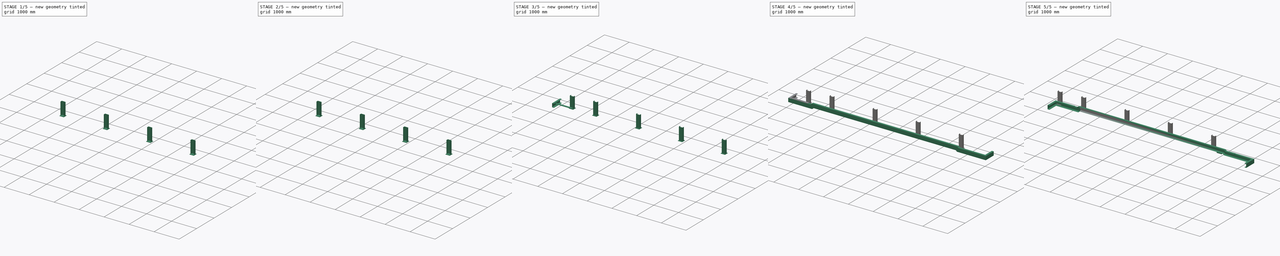
[diagram: build sequence overview — one tinted view per stage of 5, left to right]
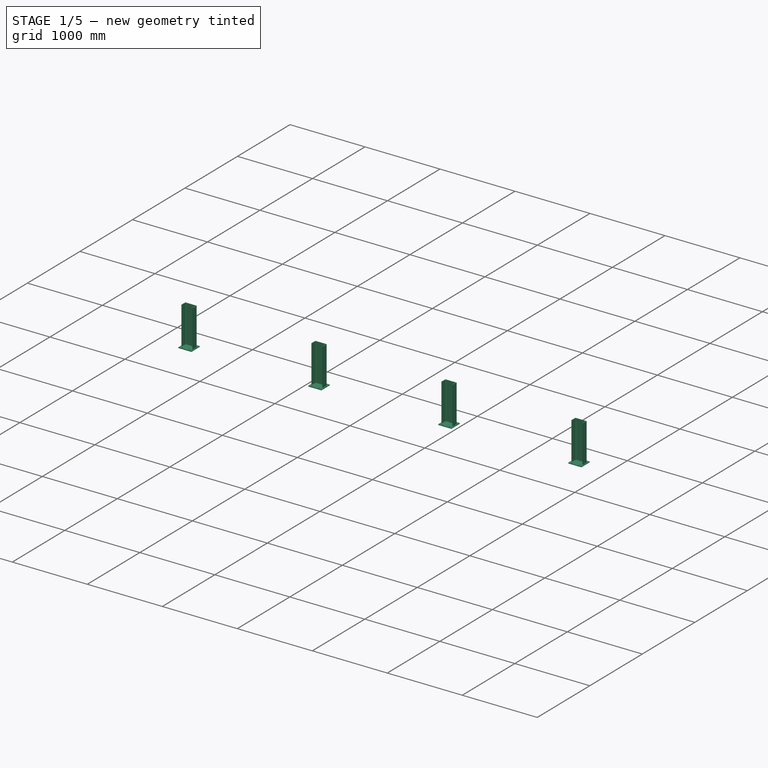
[diagram: stage 1 of 5 — iso view after this stage's code; geometry added in this stage tinted green]
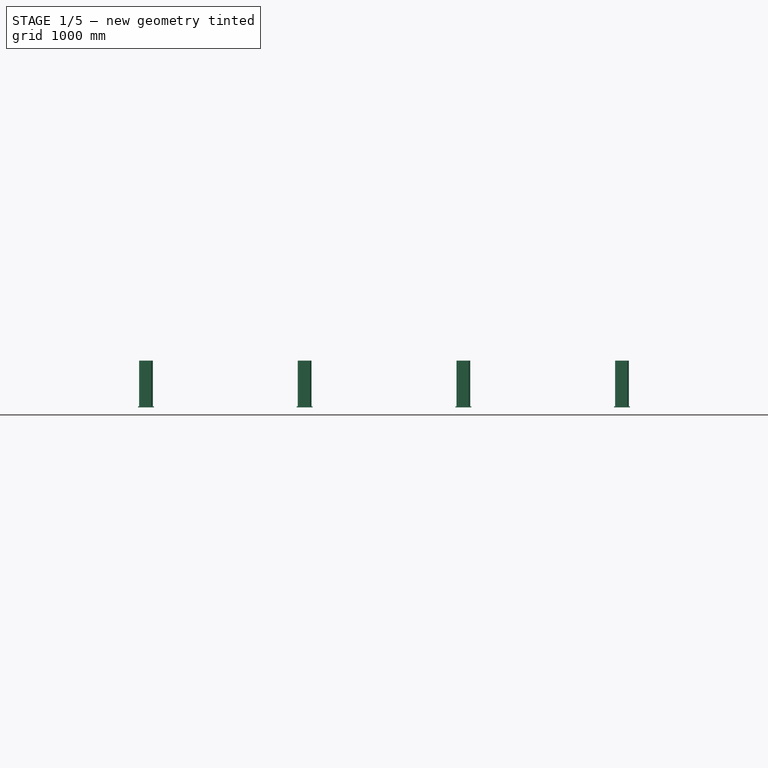
[diagram: stage 1 of 5 — front view after this stage's code; geometry added in this stage tinted green]
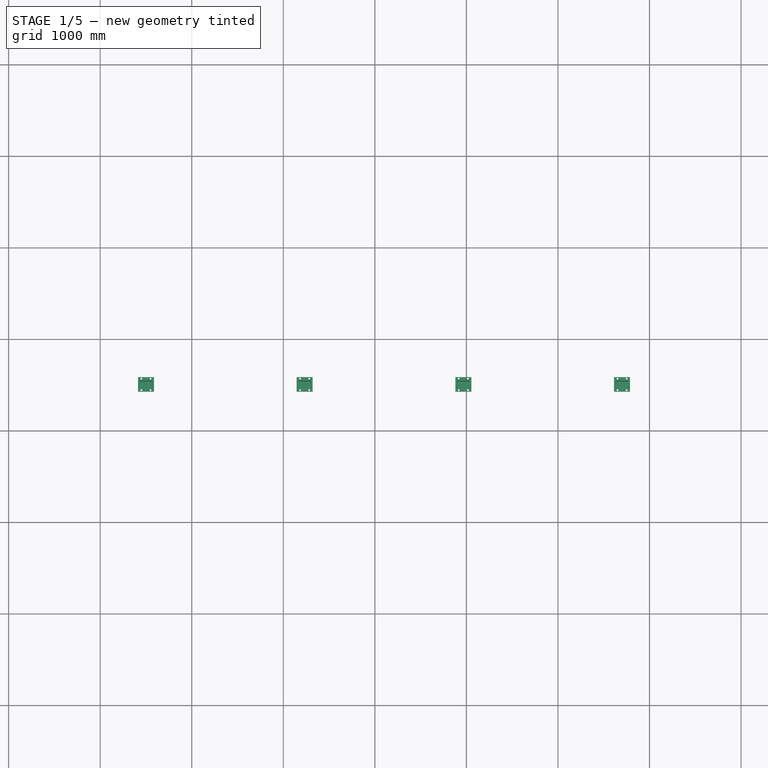
[diagram: stage 1 of 5 — top view after this stage's code; geometry added in this stage tinted green]
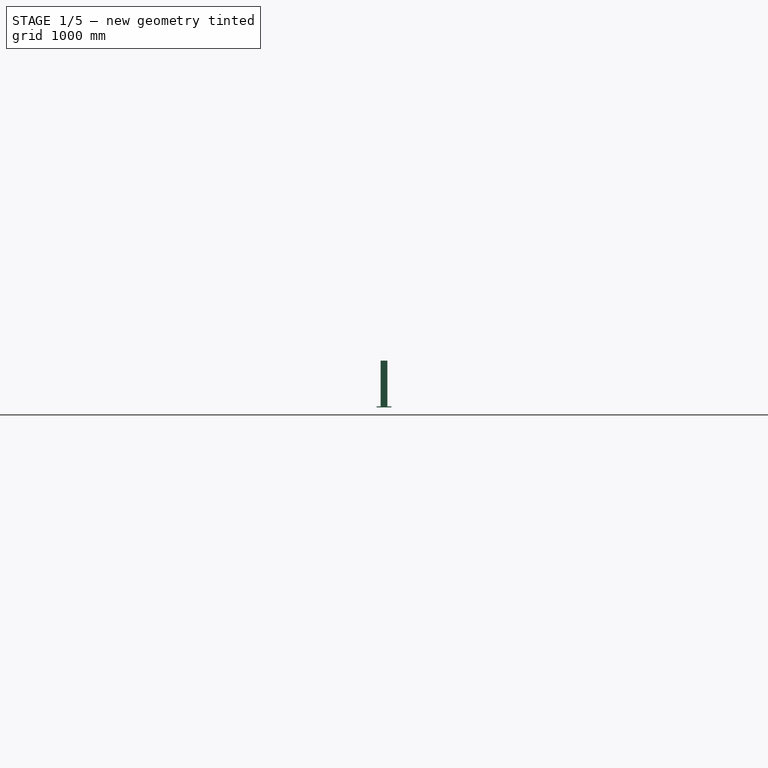
[diagram: stage 1 of 5 — right view after this stage's code; geometry added in this stage tinted green]
FCSTD DOCUMENT  (FreeCAD 1.0R39319 (Git))
Label: Frame
License: All rights reserved
LicenseURL: https://en.wikipedia.org/wiki/All_rights_reserved
objects: Part::Extrusion×9, Part::FeaturePython×9, Part::MultiFuse×9, Sketcher::SketchObject×6, App::Part×5, Part::Mirroring×2, Spreadsheet::Sheet×1, Part::Feature×1, Part::Sweep×1, Part::Cut×1
note: 44 computed .brp shape members not serialized (recipe doc carries the construction recipe); baked Part::Feature solids carry a one-line shape summary decoded from their .brp

FEATURE [Part::FeaturePython] BasePlate001  # WARN: FeaturePython — macro-defined, semantics opaque (R4)
  B = 175
  D = 19
  H = 160
  b1 = 25
  h1 = 30
  sface = 0
FEATURE [Part::FeaturePython] Channel001  # WARN: FeaturePython — macro-defined, semantics opaque (R4)
  B = 75
  H = 150
  L = 510
  Placement = pos=(0,0,0) rot=(1,0,0;1.5708rad)
  Solid = true
  g0 = 7.85
  mass = 12.0025
  size = 3
  standard = SS
  expr: L = str(Spreadsheet.Ht - 90 + (Spreadsheet.C0 - 1300 + 500) * tan(Spreadsheet.k))
FEATURE [Part::Extrusion] Extrude021
  Base = -> BasePlate001
  Dir = (0,0,1)
  DirMode = 2
  FaceMakerClass = Part::FaceMakerBullseye
  FaceMakerMode = 3
  LengthFwd = 10
  LengthRev = 0
  Solid = true
  Symmetric = false
FEATURE [Part::MultiFuse] Fusion011  label="PostC001"
  Placement = pos=(500,-492.5,-600) rot=(0,0,-1;1.5708rad)
  Shapes = -> [Extrude021,Channel001]
  expr: .Placement.Base.z = -Spreadsheet.Ht
FEATURE [Part::FeaturePython] Array  # Draft array (typed FeaturePython)
  Angle = 360
  ArrayType = 0
  Axis = (0,0,1)
  Base = -> Fusion011
  Center = (0,0,0)
  Count = 3
  Fuse = true
  IntervalAxis = (0,0,0)
  IntervalX = (1733.33,0,0)
  IntervalY = (0,100,0)
  IntervalZ = (0,0,100)
  NumberCircles = 3
  NumberPolar = 5
  NumberX = 3
  NumberY = 1
  NumberZ = 1
  Placement = pos=(1733.33,0,0) rot=(0,0,1;0rad)
  RadialDistance = 50
  Symmetry = 1
  TangentialDistance = 25
  expr: .IntervalX.x = Spreadsheet.post_x
  expr: .Placement.Base.x = Spreadsheet.post_x
  expr: NumberX = Spreadsheet.post_c + 1
FEATURE [Part::MultiFuse] Fusion013
  Refine = true
  Shapes = -> [Array,Fusion011]
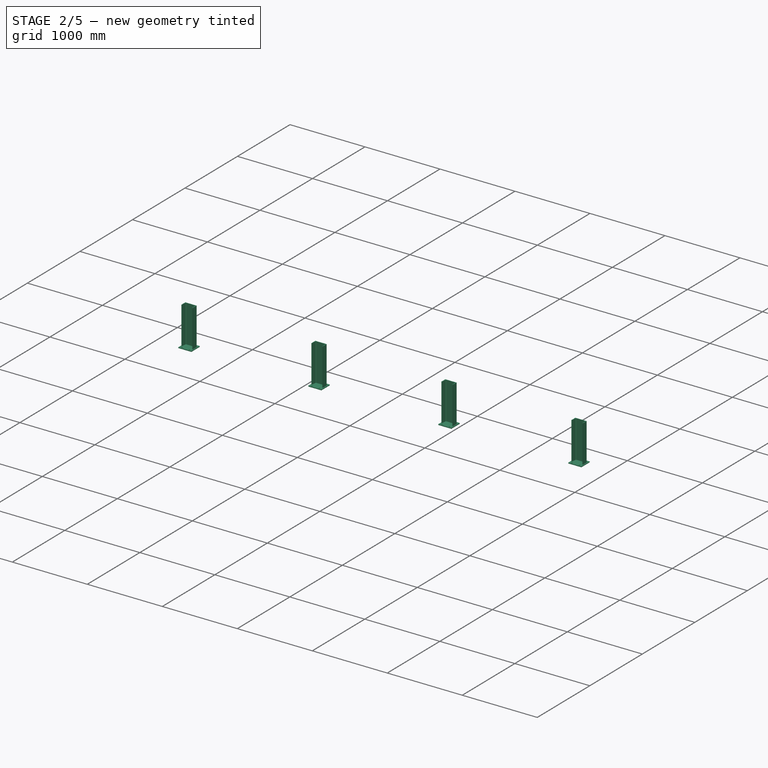
[diagram: stage 2 of 5 — iso view after this stage's code; geometry added in this stage tinted green]
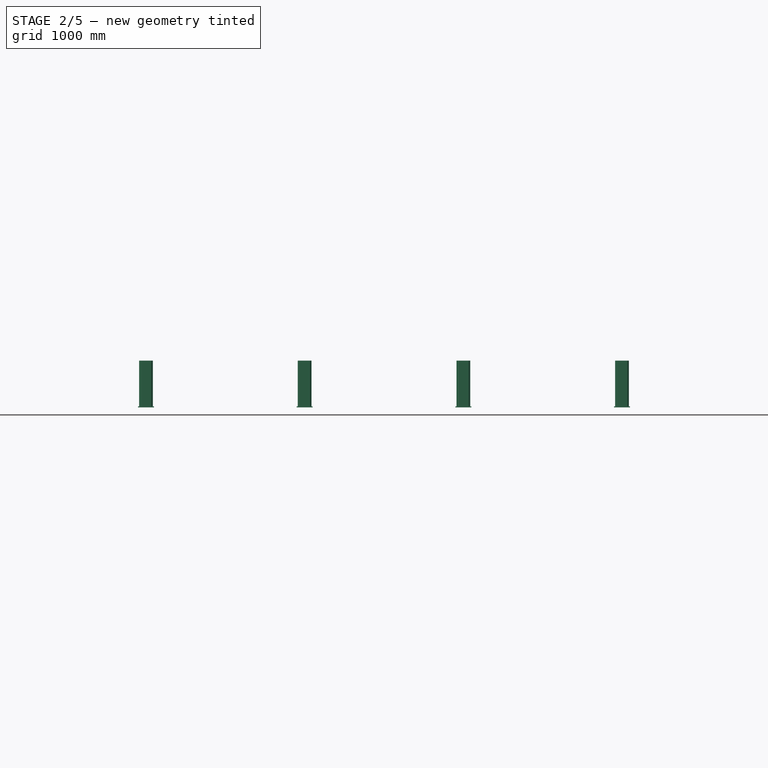
[diagram: stage 2 of 5 — front view after this stage's code; geometry added in this stage tinted green]
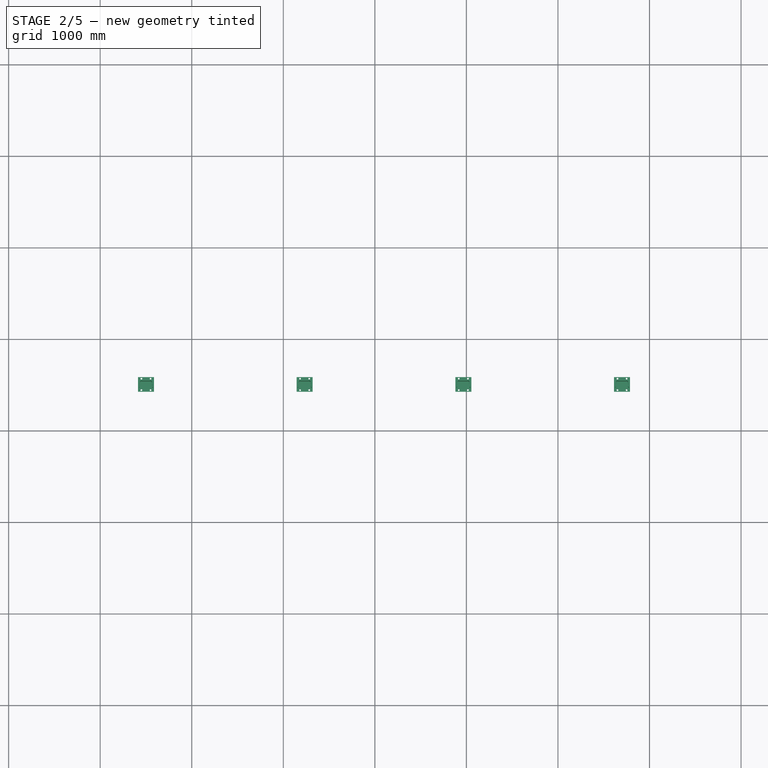
[diagram: stage 2 of 5 — top view after this stage's code; geometry added in this stage tinted green]
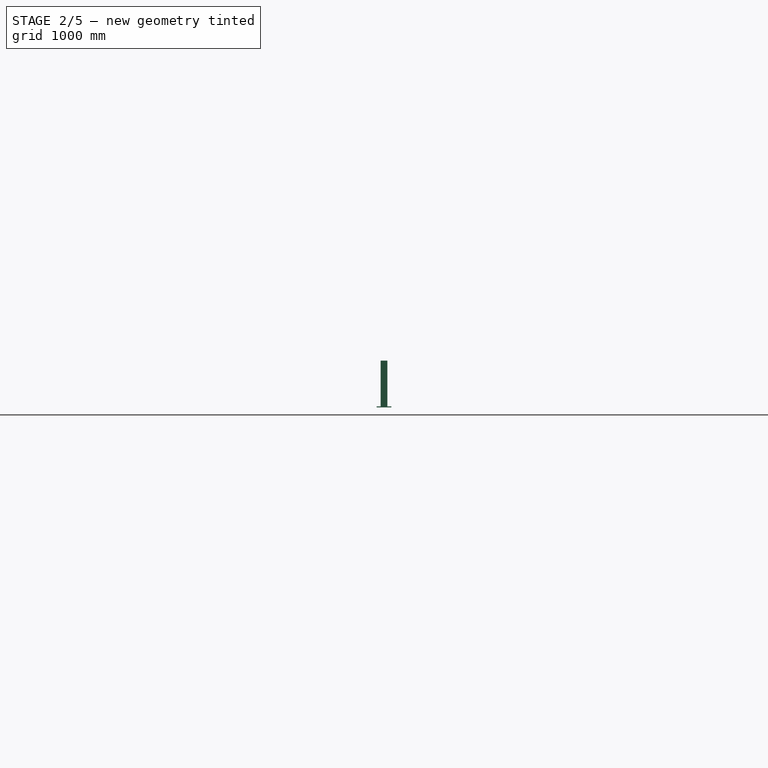
[diagram: stage 2 of 5 — right view after this stage's code; geometry added in this stage tinted green]
FEATURE [Part::FeaturePython] BasePlate002  # WARN: FeaturePython — macro-defined, semantics opaque (R4)
  B = 175
  D = 19
  H = 160
  b1 = 25
  h1 = 30
  sface = 0
FEATURE [Part::FeaturePython] Channel002  # WARN: FeaturePython — macro-defined, semantics opaque (R4)
  B = 75
  H = 150
  L = 500
  Placement = pos=(0,0,0) rot=(1,0,0;1.5708rad)
  Solid = true
  g0 = 7.85
  mass = 11.8334
  size = 3
  standard = SS
  expr: L = str(Spreadsheet.Ht - 100 + (Spreadsheet.C0 - 200) * tan(Spreadsheet.k))
FEATURE [Part::Extrusion] Extrude022
  Base = -> BasePlate002
  Dir = (0,0,1)
  DirMode = 2
  FaceMakerClass = Part::FaceMakerBullseye
  FaceMakerMode = 3
  LengthFwd = 10
  LengthRev = 0
  Solid = true
  Symmetric = false
FEATURE [Part::MultiFuse] Fusion012  label="ヘッド部"
  Placement = pos=(5700,-492.5,-600) rot=(0,0,-1;1.5708rad)
  Shapes = -> [Extrude022,Channel002]
  expr: .Placement.Base.x = Spreadsheet.C0 - 800
  expr: .Placement.Base.z = -Spreadsheet.Ht
FEATURE [Sketcher::SketchObject] Sketch026
  ArcFitTolerance = 0
  FullyConstrained = true
  MakeInternals = false
  Placement = pos=(0,0,0) rot=(1,0,0;1.5708rad)
  expr: Constraints[11] = -90 + 500 * tan(Spreadsheet.k)
  expr: Constraints[8] = 180 - Spreadsheet.k
  expr: Constraints[9] = Spreadsheet.C0 - 1000
  sketch-geometry (4):
    g0: LineSegment StartX=425 StartY=-90 StartZ=0 EndX=5925 EndY=-90 EndZ=0
    g1: LineSegment StartX=5925 StartY=-90 StartZ=0 EndX=5925 EndY=910 EndZ=0
    g2: LineSegment StartX=5925 StartY=910 StartZ=0 EndX=425 EndY=910 EndZ=0
    g3: LineSegment StartX=425 StartY=910 StartZ=0 EndX=425 EndY=-90 EndZ=0
  constraints (12):
    c: Coincident(g0,g1)
    c: Vertical(g1)
    c: Coincident(g1,g2)
    c: Horizontal(g2)
    c: Coincident(g2,g3)
    c: Coincident(g3,g0)
    c: Vertical(g3)
    c: DistanceX(g-1,g0) = 425
    c: Angle(g0,g-1) = 3.14159
    c: DistanceX(g2,g2) = 5500
    c: DistanceY(g1,g1) = 1000
    c: DistanceY(g-1,g0) = -90
FEATURE [Part::Extrusion] Extrude024
  Base = -> Sketch026
  Dir = (0,-1,2e-16)
  DirMode = 2
  FaceMakerClass = Part::FaceMakerBullseye
  FaceMakerMode = 3
  LengthFwd = 600
  LengthRev = 0
  Solid = true
  Symmetric = false
FEATURE [Part::Cut] Cut
  Base = -> Fusion013
  Refine = true
  Tool = -> Extrude024
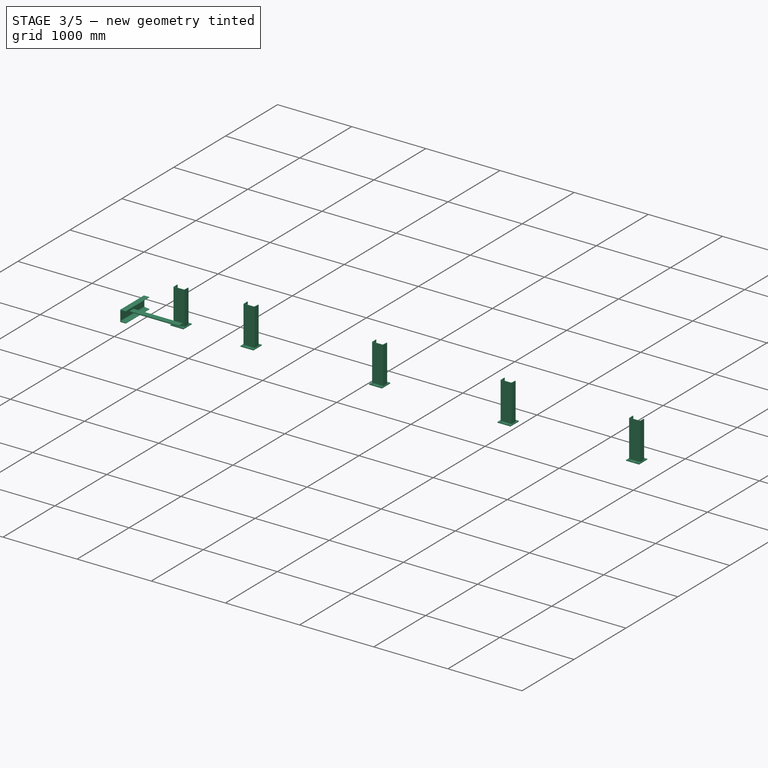
[diagram: stage 3 of 5 — iso view after this stage's code; geometry added in this stage tinted green]
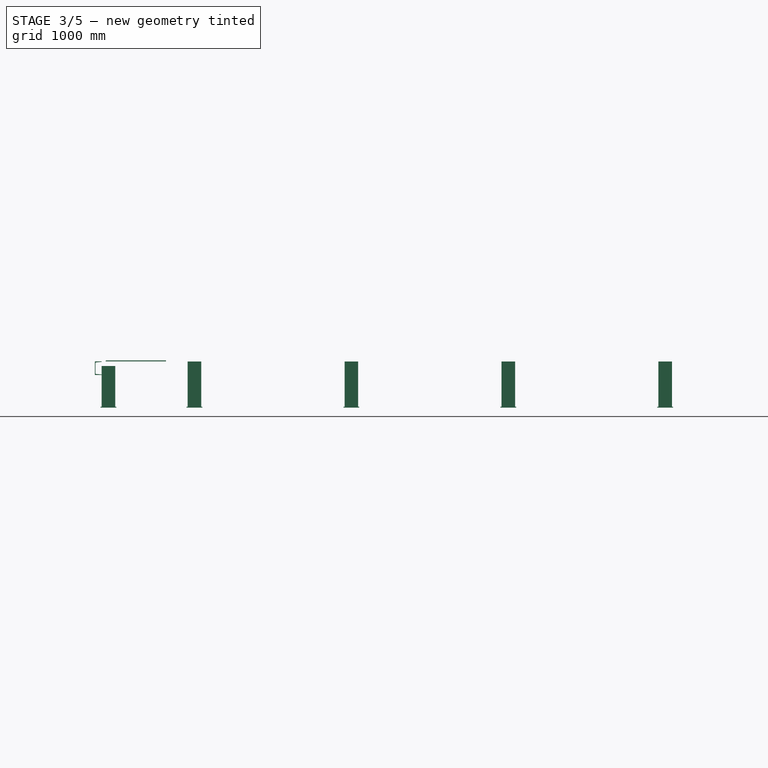
[diagram: stage 3 of 5 — front view after this stage's code; geometry added in this stage tinted green]
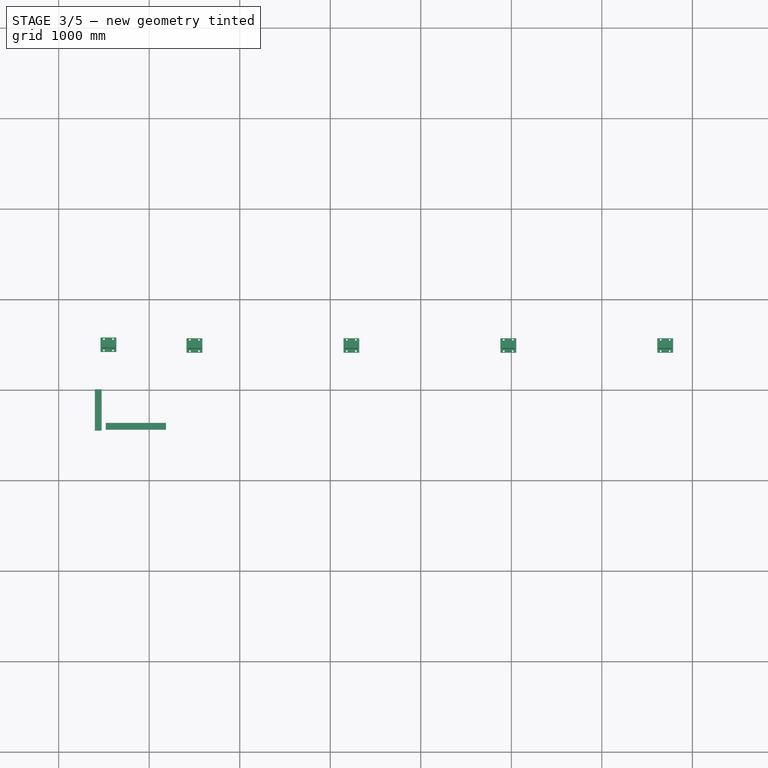
[diagram: stage 3 of 5 — top view after this stage's code; geometry added in this stage tinted green]
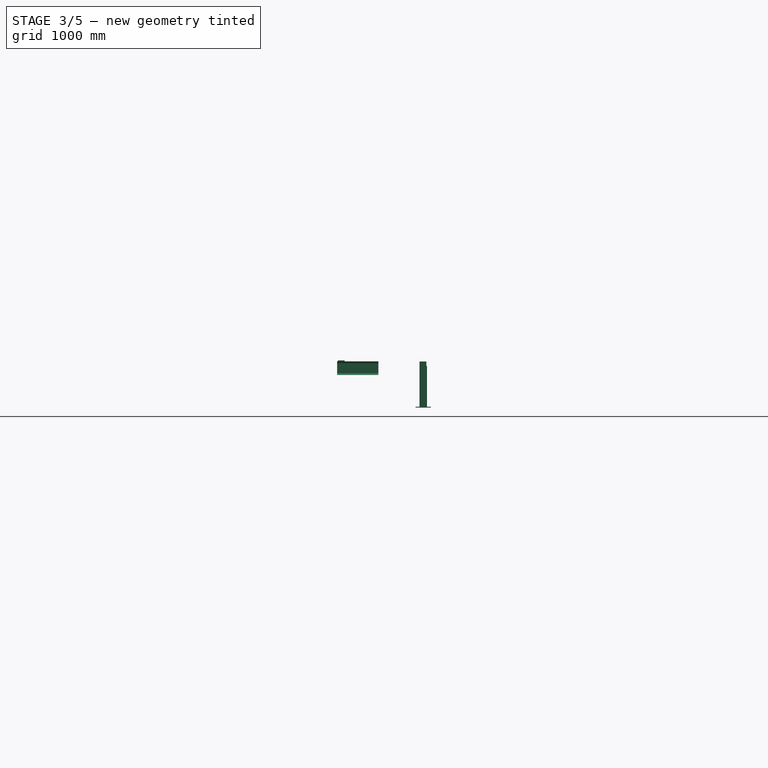
[diagram: stage 3 of 5 — right view after this stage's code; geometry added in this stage tinted green]
FEATURE [Part::FeaturePython] ChannelSteel  # WARN: FeaturePython — macro-defined, semantics opaque (R4)
  B = 75
  H = 150
  L = 1000
  Placement = pos=(-600,0,-239) rot=(0,0,1;0rad)
  Solid = false
  g0 = 7.85
  mass = 0
  size = 3
  standard = SS
  t1 = 6.5
  t2 = 10
FEATURE [Part::Extrusion] Extrude006
  Base = -> ChannelSteel
  Dir = (0,1,0)
  DirMode = 2
  FaceMakerClass = Part::FaceMakerBullseye
  FaceMakerMode = 3
  LengthFwd = 455
  LengthRev = 0
  Reversed = true
  Solid = false
  Symmetric = false
  expr: LengthFwd = Spreadsheet.W0 / 2
FEATURE [Part::Extrusion] Extrude003
  Base = -> Sketch012
  Dir = (0,0,1)
  DirMode = 2
  FaceMakerClass = Part::FaceMakerBullseye
  FaceMakerMode = 3
  LengthFwd = 12
  LengthRev = 0
  Solid = true
  Symmetric = false
FEATURE [App::Part] Part012  label="frame"
  Group = -> [Part,Mirror,Sketch007]
  Origin = -> Origin016
FEATURE [Part::FeaturePython] BasePlate  # WARN: FeaturePython — macro-defined, semantics opaque (R4)
  B = 175
  D = 19
  H = 160
  b1 = 25
  h1 = 30
  sface = 0
FEATURE [Part::Extrusion] Extrude020
  Base = -> BasePlate
  Dir = (0,0,1)
  DirMode = 2
  FaceMakerClass = Part::FaceMakerBullseye
  FaceMakerMode = 3
  LengthFwd = 10
  LengthRev = 0
  Solid = true
  Symmetric = false
FEATURE [Part::FeaturePython] Channel  # WARN: FeaturePython — macro-defined, semantics opaque (R4)
  B = 75
  H = 150
  L = 460
  Placement = pos=(0,0,0) rot=(1,0,0;1.5708rad)
  Solid = true
  g0 = 7.85
  mass = 11.1572
  size = 3
  standard = SS
  expr: L = str(Spreadsheet.Ht - 140 - 450 * tan(Spreadsheet.k))
FEATURE [Part::MultiFuse] Fusion010  label="PostC"
  Placement = pos=(-450,-500,-600) rot=(0,0,-1;1.5708rad)
  Shapes = -> [Extrude020,Channel]
  expr: .Placement.Base.z = -Spreadsheet.Ht
FEATURE [App::Part] Part018  label="post"
  Group = -> [BasePlate,Channel,Extrude020,Fusion010,BasePlate002,Channel002,Extrude022,Fusion012,Array,Fusion013,Extrude021,Extrude024,Fusion011,Sketch026,Channel001,BasePlate001,Cut]
  Origin = -> Origin021
  expr: .Placement.Base.y = -(Spreadsheet.B0 - 600) / 2
FEATURE [Part::Mirroring] Mirror001  label="post (mirrored)"
  Base = (-1500,0,0)
  Normal = (0,-1,0)
  Source = -> Part018
FEATURE [App::Part] Part019  label="Post"
  Group = -> [Part018,Mirror001]
  Origin = -> Origin022
  Placement = pos=(0,0,-400) rot=(0,0,1;0rad)
  expr: .Placement.Base.z = Spreadsheet.Ht - 1000
FEATURE [App::Part] Part002  label="Frame"
  Group = -> [Spreadsheet,Part012,Part019]
  JPN = 本体
  Origin = -> Origin007
  Standard = B=600  L=6500
  count = 1
  g0 = 7.85
  mass = 201.83
  material = SS41
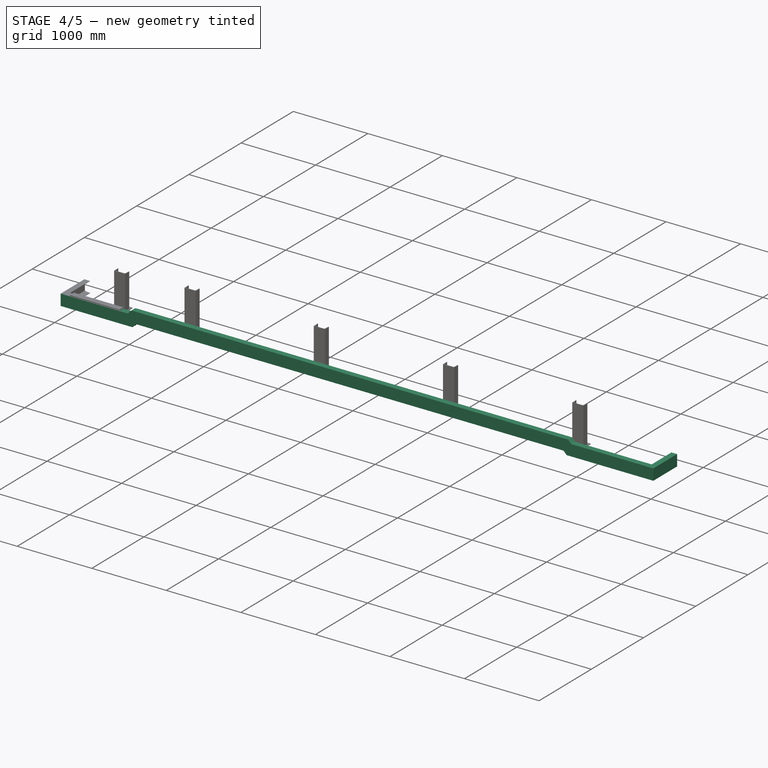
[diagram: stage 4 of 5 — iso view after this stage's code; geometry added in this stage tinted green]
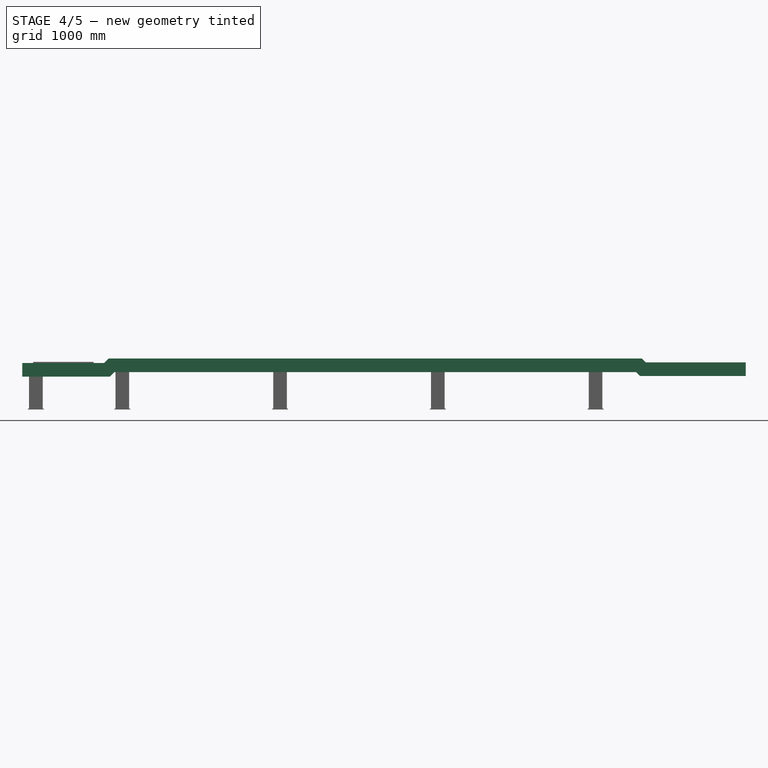
[diagram: stage 4 of 5 — front view after this stage's code; geometry added in this stage tinted green]
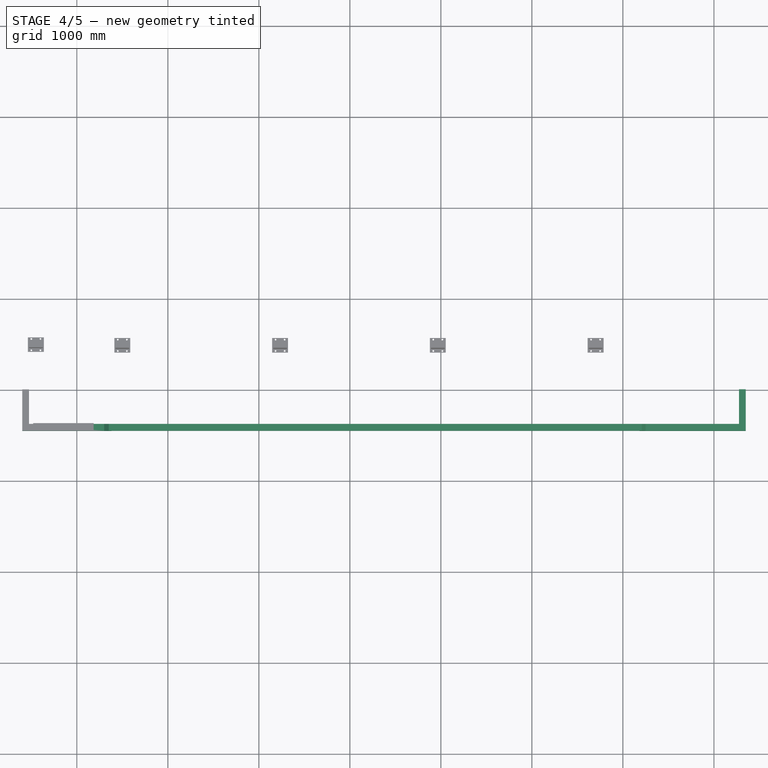
[diagram: stage 4 of 5 — top view after this stage's code; geometry added in this stage tinted green]
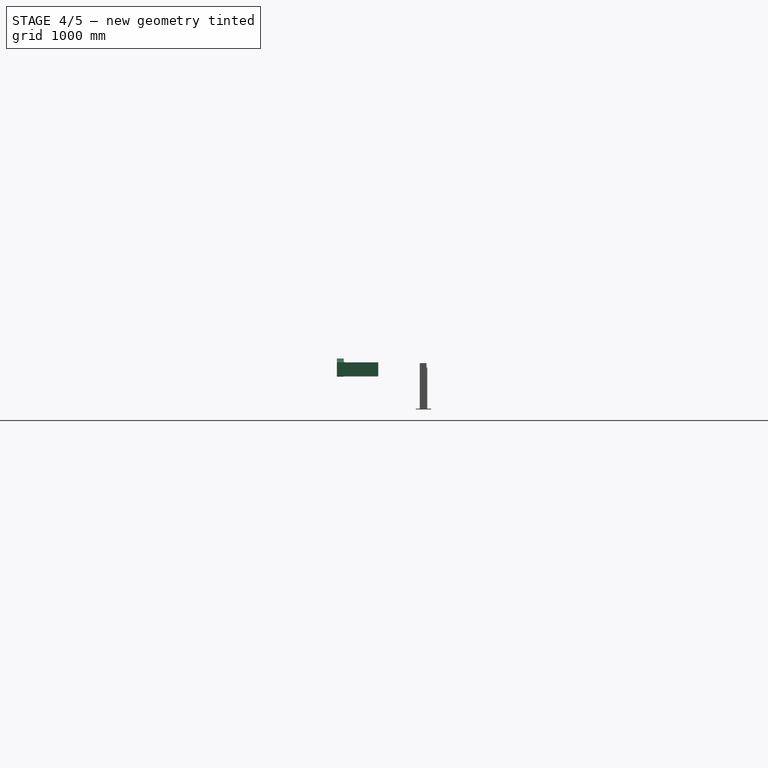
[diagram: stage 4 of 5 — right view after this stage's code; geometry added in this stage tinted green]
FEATURE [Spreadsheet::Sheet] Spreadsheet  label="shtFrame"
  cells = C1='tailPulleyHIght Ht; D1='Inclination k(degree); E1='Array_n; F1='BeltWidth B0; G1='h1; H1='h2; I1='post_x; J1='pst_c; A2='CenterDistance C0; B2(C0)=6500; C2(Ht)=600; D2(k)=0; E2(n0)==C0 / 2500; F2=500; G2(h1)=50; H2(h2)=43; I2(post_x)=1733.33333333333; J2(post_c)=2; A3='BeltWidth B0; B3(B0)=600; C3=400; D3=450; E3=500; F3=600; G3=700; H3=750; I3=800; J3=900; K3=1000; A4='Belt b1; B4(b1)=180; C4=145; D4=165; E4=180; F4=210; G4=250; H4=265; I4=280; J4=315; K4=345; A5='Belt b2; B5(b2)=160; C5==(C3 - C4) / 2; D5==(D3 - D4) / 2; E5==(E3 - E4) / 2; F5==(F3 - F4) / 2; G5==(G3 - G4) / 2; H5==(H3 - H4) / 2; I5==(I3 - I4) / 2; J5==(J3 - J4) / 2; K5==(K3 - K4) / 2; A6='BeltThickness t0; B6(t0)=10; C6=10; D6=10; E6=10; F6=10; G6=10; H6=10; I6=10; J6=10; K6=10; A7='HeadPullyDia D0; B7(D0)=360; C7=300; D7=300; E7=360; F7=360; G7=360; H7=460; I7=460; J7=520; K7=520; A8='TailPullyDia d1; B8(d1)=300; C8=260; D8=260; E8=300; F8=300; G8=300; H8=390; I8=390; J8=440; K8=440; A9='SnapPullyDia d2; B9(d2)=200; C9=200; D9=200; E9=200; F9=200; G9=200; H9=200; I9=200; J9=200; K9=200; A10='SnapPully Ls; B10(Ls)=500; C10=400; D10=400; E10=400; F10=500; G10=500; H10=500; I10=500; J10=500; K10=500; A11='SnapPully h0; B11(h0)=180; C11=180; D11=180; E11=160; F11=180; G11=180; H11=180; I11=180; J11=180; K11=180; A12='hontaihaba W; B12(W0)=910; C12=710; D12=760; E12=810; F12=910; G12=1010; H12=1060; I12=1110; J12=1210; K12=1310; A13='hontai _h; B13=103.5; C13=103.5; D13=103.5; E13=103.5; F13=103.5; G13=103.5; H13=103.5; I13=103.5; J13=103.5; K13=103.5; A14='hontai_z; B14=16; C14=16; D14=16; E14=16; F14=16; G14=16; H14=16; I14=16; J14=16; K14=16; A15='takeup_x; B15=-403.47; C15=-403.47; D15=-403.47; E15=-403.47; F15=-403.47; G15=-403.47; H15=-403.47; I15=-403.47; J15=-403.47; K15=-403.47; A16='takeup_y; B16=-362.8; C16=-362.8; D16=-362.8; E16=-362.8; F16=-410; G16=-410; H16=-410; I16=-410; J16=-410; K16=-410; A17='takeup_z; B17=-87; C17=-87; D17=-87; E17=-87; F17=-57; G17=-57; H17=-57; I17=-57; J17=-57; K17=-57; A18='carrierPitch  cp; B18=1000; A19='returnPitch rp; B19=1500; A20='outletL; B20(outletL)=50; A21='outletK; B21(outletK)=0; A22='insertX; B22(insertX)=300; A23='insertK; B23(insertK)=0
FEATURE [Sketcher::SketchObject] Sketch007
  ArcFitTolerance = 0
  FullyConstrained = true
  MakeInternals = false
  MapMode = 5
  Placement = pos=(0,0,14) rot=(1,0,0;1.5708rad)
  expr: Constraints[11] = Spreadsheet.C0 + 1000
  expr: Constraints[14] = <<shtFrame>>.h1
  expr: Constraints[15] = <<shtFrame>>.h2
  sketch-geometry (5):
    g0: LineSegment StartX=-600 StartY=-99 StartZ=0 EndX=250 EndY=-99 EndZ=0
    g1: LineSegment StartX=250 StartY=-99 StartZ=0 EndX=300 EndY=-49 EndZ=0
    g2: LineSegment StartX=300 StartY=-49 StartZ=0 EndX=6257 EndY=-49 EndZ=0
    g3: LineSegment StartX=6257 StartY=-49 StartZ=0 EndX=6300 EndY=-92 EndZ=0
    g4: LineSegment StartX=6300 StartY=-92 StartZ=0 EndX=7500 EndY=-92 EndZ=0
  constraints (16):
    c: Horizontal(g0)
    c: Coincident(g0,g1)
    c: Coincident(g1,g2)
    c: Horizontal(g2)
    c: Coincident(g2,g3)
    c: Coincident(g3,g4)
    c: Horizontal(g4)
    c: DistanceX(g0,g-1) = 600
    c: Angle(g1,g0) = 2.35619
    c: DistanceX(g-1,g0) = 250
    c: Angle(g4,g3) = 2.35619
    c: DistanceX(g-1,g4) = 7500
    c: DistanceX(g4,g4) = 1200
    c: DistanceY(g0,g-1) = 99
    c: DistanceY(g0,g1) = 50
    c: DistanceY(g3,g3) = 43
FEATURE [Part::Feature] ChannelSteel001
  Placement = pos=(-600,-2.2e-14,-239) rot=(0,0,1;0rad)
  shape: bbox 2e-07 x 75 x 150 mm, 0 faces, 0 solids (baked)
FEATURE [Sketcher::SketchObject] Sketch011
  ArcFitTolerance = 0
  FullyConstrained = true
  MakeInternals = false
  MapMode = 5
  Placement = pos=(0,0,0) rot=(1,0,0;1.5708rad)
  expr: Constraints[13] = Spreadsheet.C0
  expr: Constraints[16] = Spreadsheet.h1
  expr: Constraints[18] = Spreadsheet.h2
  sketch-geometry (6):
    g0: LineSegment StartX=-600 StartY=-89 StartZ=0 EndX=300 EndY=-89 EndZ=0
    g1: LineSegment StartX=300 StartY=-89 StartZ=0 EndX=350 EndY=-39 EndZ=0
    g2: LineSegment StartX=350 StartY=-39 StartZ=0 EndX=6207 EndY=-39 EndZ=0
    g3: LineSegment StartX=6207 StartY=-39 StartZ=0 EndX=6250 EndY=-82 EndZ=0
    g4: LineSegment StartX=6250 StartY=-82 StartZ=0 EndX=7350 EndY=-82 EndZ=0
    g5: LineSegment [constr] StartX=0 StartY=0 StartZ=0 EndX=6500 EndY=0 EndZ=0
  constraints (19):
    c: Horizontal(g0)
    c: Coincident(g0,g1)
    c: Coincident(g1,g2)
    c: Horizontal(g2)
    c: Coincident(g2,g3)
    c: Coincident(g3,g4)
    c: Horizontal(g4)
    c: DistanceX(g0,g-1) = 600
    c: DistanceX(g-1,g0) = 300
    c: Angle(g1,g0) = 2.35619
    c: Angle(g4,g3) = 2.35619
    c: PointOnObject(g5,g-1)
    c: Coincident(g5,g-1)
    c: DistanceX(g5,g5) = 6500
    c: DistanceX(g5,g4) = 850
    c: DistanceX(g3,g5) = 250
    c: DistanceY(g0,g1) = 50
    c: DistanceY(g-1,g0) = -89
    c: DistanceY(g3,g3) = 43
FEATURE [Part::Sweep] Sweep001
  Frenet = false
  Placement = pos=(0,-455,0) rot=(0,0,1;0rad)
  Sections = -> [ChannelSteel001]
  Solid = true
  Spine = -> Sketch011 [Edge1,Edge2,Edge3,Edge4,Edge5]
  Transition = 1
  expr: .Placement.Base.y = -Spreadsheet.W0 / 2
FEATURE [Part::FeaturePython] ChannelSteel002  # WARN: FeaturePython — macro-defined, semantics opaque (R4)
  B = 75
  H = 150
  L = 1000
  Placement = pos=(7350,0,-112) rot=(0,1,0;3.14159rad)
  Solid = false
  g0 = 7.85
  mass = 0
  size = 3
  standard = SS
  t1 = 6.5
  t2 = 10
  expr: .Placement.Base.x = Spreadsheet.C0 + 850
FEATURE [Part::Extrusion] Extrude007
  Base = -> ChannelSteel002
  Dir = (0,1,0)
  DirMode = 2
  FaceMakerClass = Part::FaceMakerBullseye
  FaceMakerMode = 3
  LengthFwd = 455
  LengthRev = 0
  Placement = pos=(0,0,30) rot=(0,0,1;0rad)
  Reversed = true
  Solid = false
  Symmetric = false
  expr: .Placement.Base.z = 73 - Spreadsheet.h2
  expr: LengthFwd = Spreadsheet.W0 / 2
FEATURE [Part::MultiFuse] Fusion
  Refine = true
  Shapes = -> [Sweep001,Extrude006]
FEATURE [Part::MultiFuse] Fusion001
  Refine = true
  Shapes = -> [Fusion,Extrude003]
FEATURE [Part::MultiFuse] Fusion002
  Refine = true
  Shapes = -> [Fusion001,Extrude007]
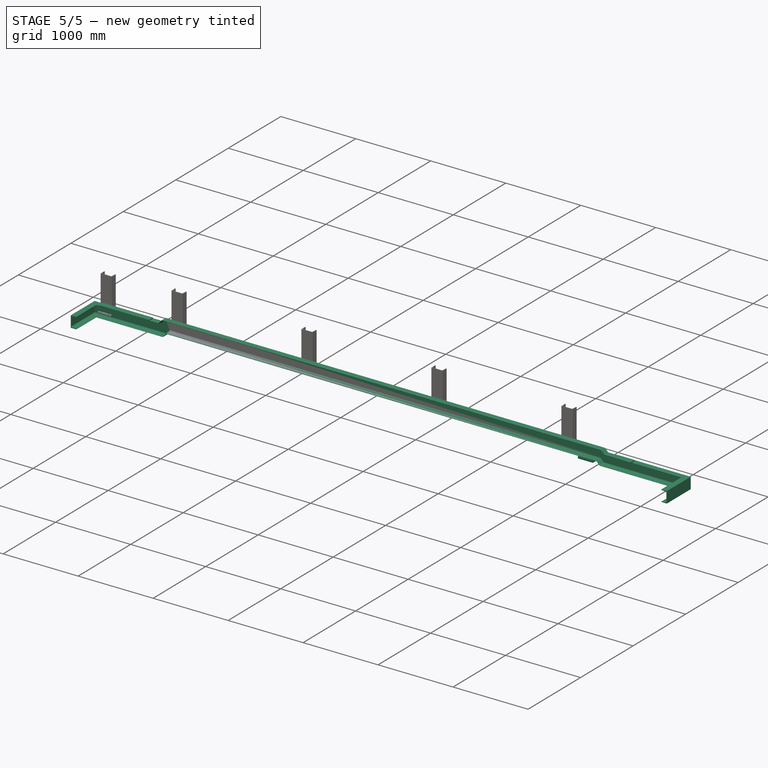
[diagram: stage 5 of 5 — iso view after this stage's code; geometry added in this stage tinted green]
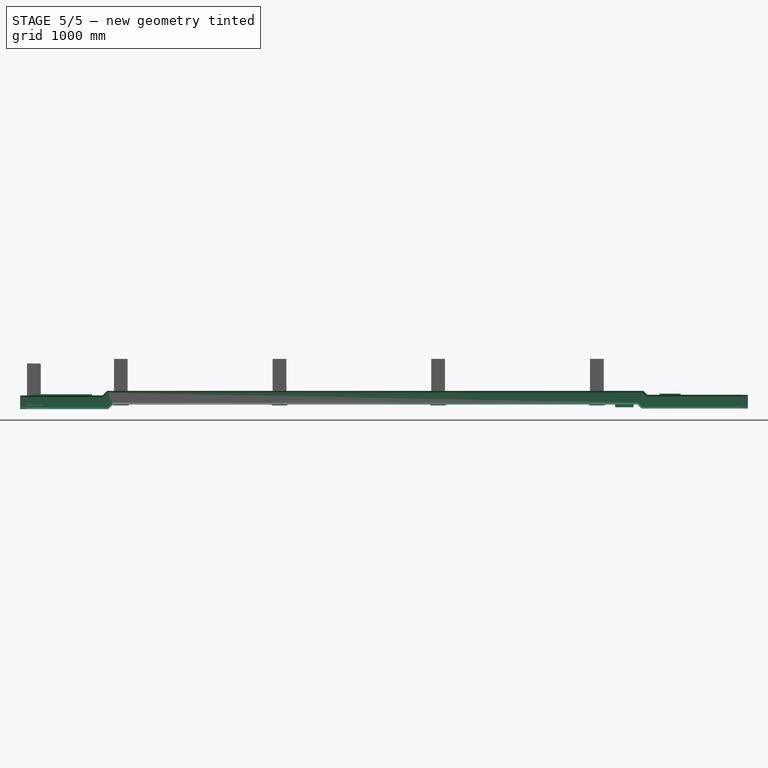
[diagram: stage 5 of 5 — front view after this stage's code; geometry added in this stage tinted green]
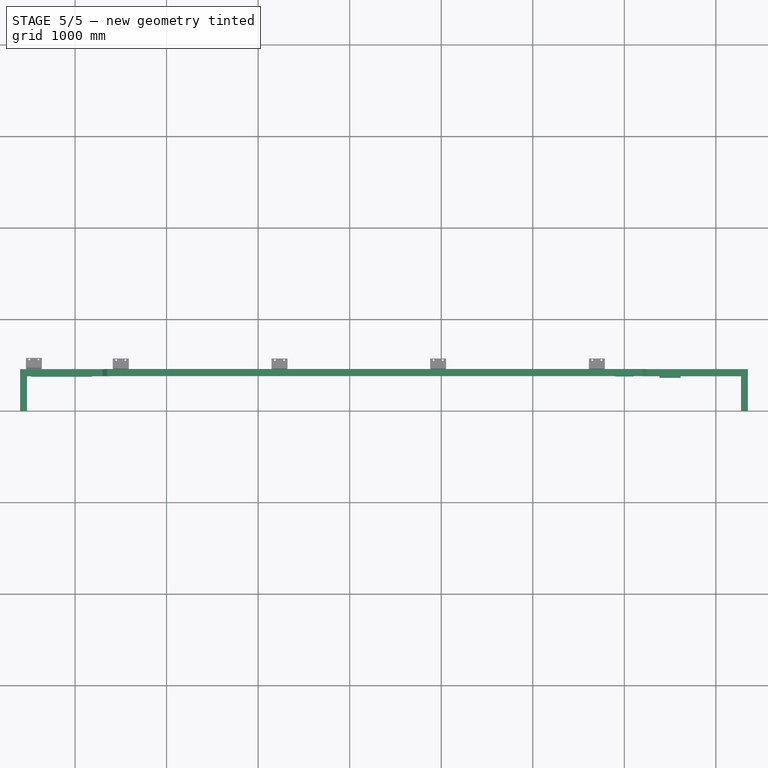
[diagram: stage 5 of 5 — top view after this stage's code; geometry added in this stage tinted green]
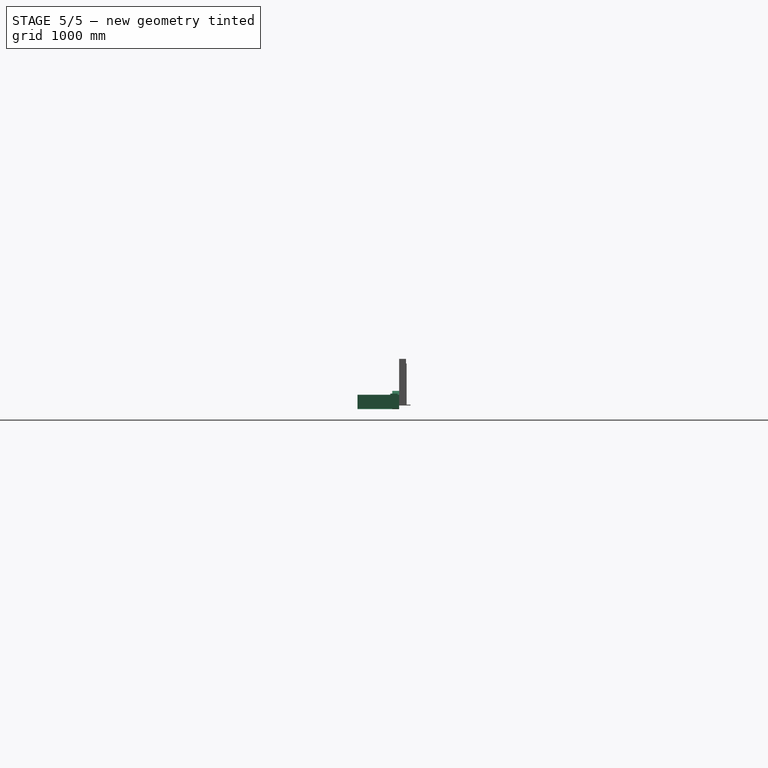
[diagram: stage 5 of 5 — right view after this stage's code; geometry added in this stage tinted green]
FEATURE [Sketcher::SketchObject] Sketch012
  ArcFitTolerance = 0
  AttachmentSupport = -> [Sweep001]
  FullyConstrained = true
  MakeInternals = false
  MapMode = 5
  Placement = pos=(0,-455,-89) rot=(0,0,1;0rad)
  sketch-geometry (4):
    g0: LineSegment StartX=-480 StartY=8 StartZ=0 EndX=185 EndY=8 EndZ=0
    g1: LineSegment StartX=185 StartY=8 StartZ=0 EndX=185 EndY=83 EndZ=0
    g2: LineSegment StartX=185 StartY=83 StartZ=0 EndX=-480 EndY=83 EndZ=0
    g3: LineSegment StartX=-480 StartY=83 StartZ=0 EndX=-480 EndY=8 EndZ=0
  constraints (12):
    c: Coincident(g0,g1)
    c: Coincident(g1,g2)
    c: Coincident(g2,g3)
    c: Coincident(g3,g0)
    c: Horizontal(g0)
    c: Horizontal(g2)
    c: Vertical(g1)
    c: Vertical(g3)
    c: DistanceY(g1,g1) = 75
    c: DistanceY(g-1,g0) = 8
    c: DistanceX(g-1,g0) = 185
    c: DistanceX(g0,g0) = 665
FEATURE [Sketcher::SketchObject] Sketch013
  ArcFitTolerance = 0
  AttachmentSupport = -> [Sweep001]
  FullyConstrained = false
  MakeInternals = false
  MapMode = 5
  Placement = pos=(0,-455,-82) rot=(0,0,1;0rad)
  expr: Constraints[9] = Spreadsheet.C0
  sketch-geometry (5):
    g0: LineSegment StartX=6385 StartY=16.2326 StartZ=0 EndX=6615 EndY=16.2326 EndZ=0
    g1: LineSegment StartX=6615 StartY=16.2326 StartZ=0 EndX=6615 EndY=96.2326 EndZ=0
    g2: LineSegment StartX=6615 StartY=96.2326 StartZ=0 EndX=6385 EndY=96.2326 EndZ=0
    g3: LineSegment StartX=6385 StartY=96.2326 StartZ=0 EndX=6385 EndY=16.2326 EndZ=0
    g4: LineSegment [constr] StartX=6500 StartY=284.577 StartZ=0 EndX=6500 EndY=-153.677 EndZ=0
  constraints (13):
    c: Coincident(g0,g1)
    c: Coincident(g1,g2)
    c: Coincident(g2,g3)
    c: Coincident(g3,g0)
    c: Horizontal(g0)
    c: Horizontal(g2)
    c: Vertical(g1)
    c: Vertical(g3)
    c: Vertical(g4)
    c: DistanceX(g-2,g4) = 6500
    c: DistanceY(g1,g1) = 80
    c: DistanceX(g0,g0) = 230
    c: DistanceX(g4,g0) = 115
FEATURE [Part::Extrusion] Extrude004
  Base = -> Sketch013
  Dir = (0,0,1)
  DirMode = 2
  FaceMakerClass = Part::FaceMakerBullseye
  FaceMakerMode = 3
  LengthFwd = 12
  LengthRev = 0
  Solid = true
  Symmetric = false
FEATURE [Sketcher::SketchObject] Sketch014
  ArcFitTolerance = 0
  AttachmentSupport = -> [Sweep001]
  FullyConstrained = false
  MakeInternals = false
  MapMode = 5
  Placement = pos=(0,-455,-189) rot=(1,0,0;3.14159rad)
  expr: Constraints[13] = Spreadsheet.C0 - 500
  sketch-geometry (5):
    g0: LineSegment StartX=5900 StartY=-9 StartZ=0 EndX=6100 EndY=-9 EndZ=0
    g1: LineSegment StartX=6100 StartY=-9 StartZ=0 EndX=6100 EndY=-79 EndZ=0
    g2: LineSegment StartX=6100 StartY=-79 StartZ=0 EndX=5900 EndY=-79 EndZ=0
    g3: LineSegment StartX=5900 StartY=-79 StartZ=0 EndX=5900 EndY=-9 EndZ=0
    g4: LineSegment [constr] StartX=6000 StartY=33.7597 StartZ=0 EndX=6000 EndY=-194.785 EndZ=0
  constraints (14):
    c: Coincident(g0,g1)
    c: Coincident(g1,g2)
    c: Coincident(g2,g3)
    c: Coincident(g3,g0)
    c: Horizontal(g0)
    c: Horizontal(g2)
    c: Vertical(g1)
    c: Vertical(g3)
    c: Vertical(g4)
    c: DistanceX(g0,g0) = 200
    c: DistanceY(g3,g3) = 70
    c: DistanceX(g4,g0) = 100
    c: DistanceY(g-1,g0) = -9
    c: DistanceX(g-1,g4) = 6000
FEATURE [Part::Extrusion] Extrude005
  Base = -> Sketch014
  Dir = (0,0,-1)
  DirMode = 2
  FaceMakerClass = Part::FaceMakerBullseye
  FaceMakerMode = 3
  LengthFwd = 30
  LengthRev = 0
  Solid = true
  Symmetric = false
FEATURE [Part::MultiFuse] Fusion003
  Shapes = -> [Fusion002,Extrude004]
FEATURE [Part::MultiFuse] Fusion004
  Placement = pos=(0,0,-400) rot=(0,1,0;0rad)
  Refine = true
  Shapes = -> [Fusion003,Extrude005]
  expr: .Placement.Base.z = Spreadsheet.Ht - 1000
  expr: .Placement.Rotation.Angle = -Spreadsheet.k
FEATURE [App::Part] Part  label="本体"
  Group = -> [Fusion,ChannelSteel002,ChannelSteel,ChannelSteel001,Sweep001,Sketch011,Sketch012,Extrude005,Extrude006,Extrude003,Extrude007,Extrude004,Sketch013,Sketch014,Fusion002,Fusion003,Fusion001,Fusion004]
  Origin = -> Origin006
FEATURE [Part::Mirroring] Mirror  label="本体 (mirrored)"
  Base = (-1000,0,0)
  Normal = (0,-1,0)
  Source = -> Part
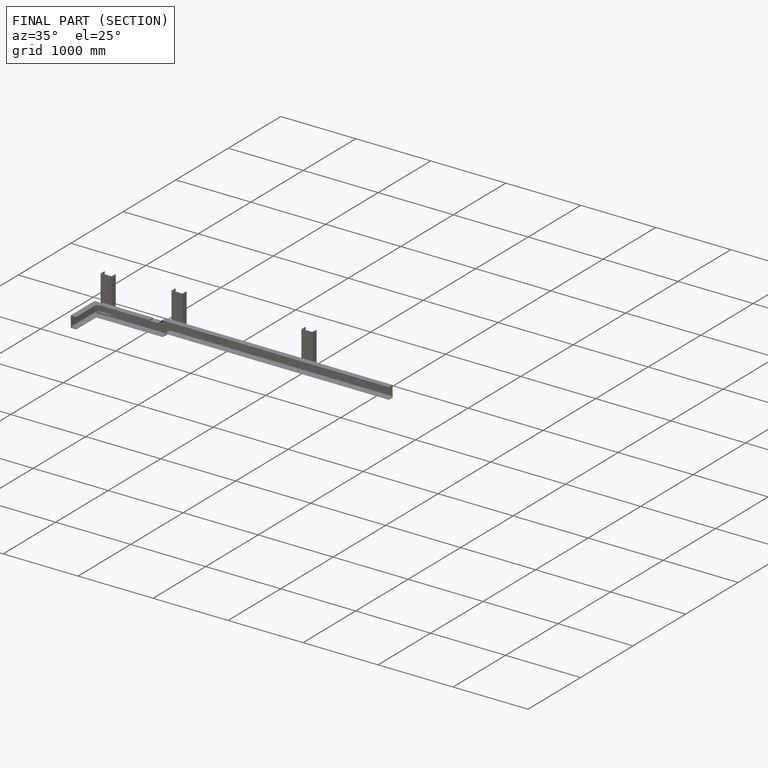
[diagram: finished part — half-section view (interior)]
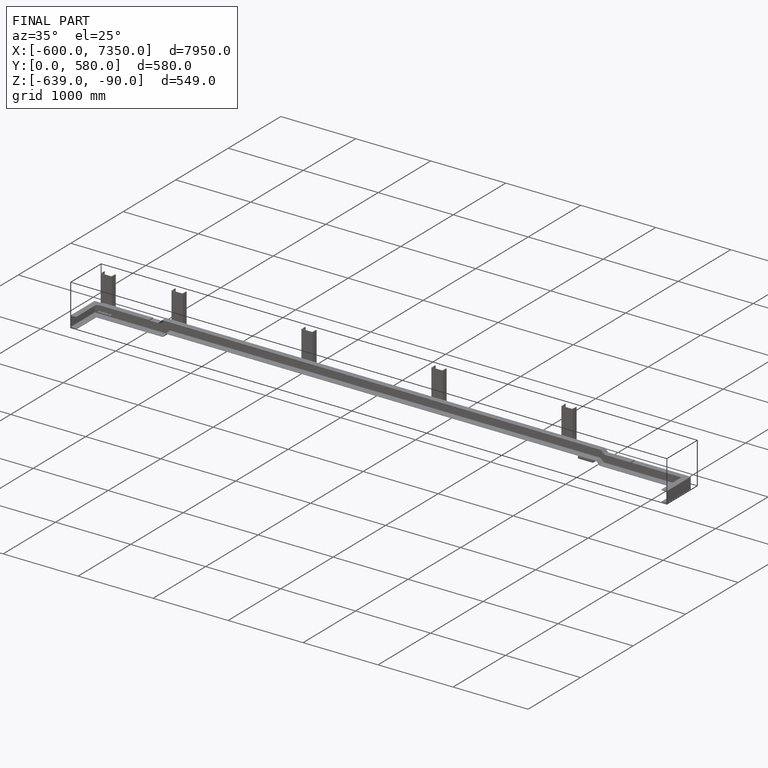
[diagram: finished part — iso view with bounding-box wireframe]
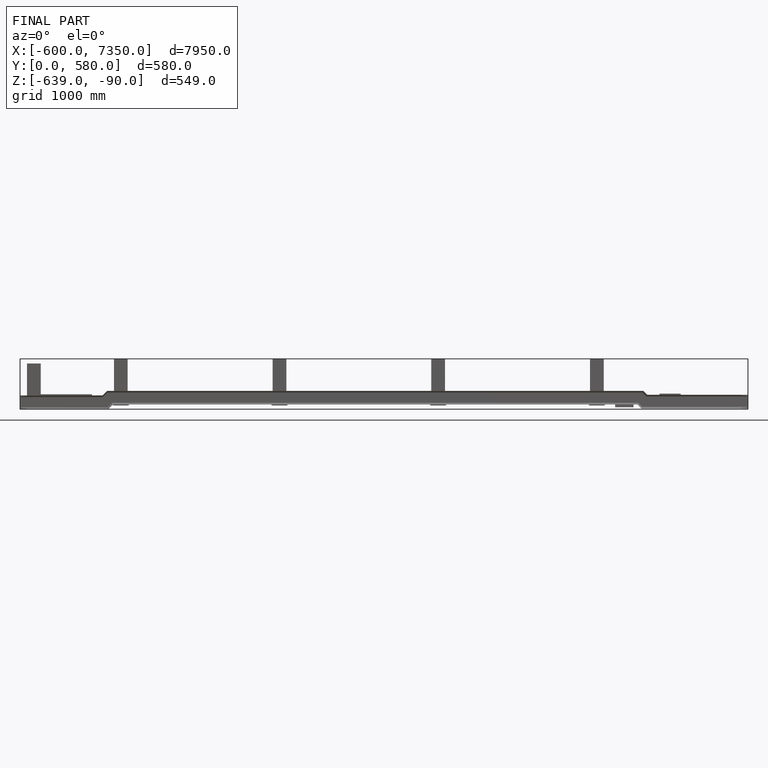
[diagram: finished part — front view with bounding-box wireframe]
